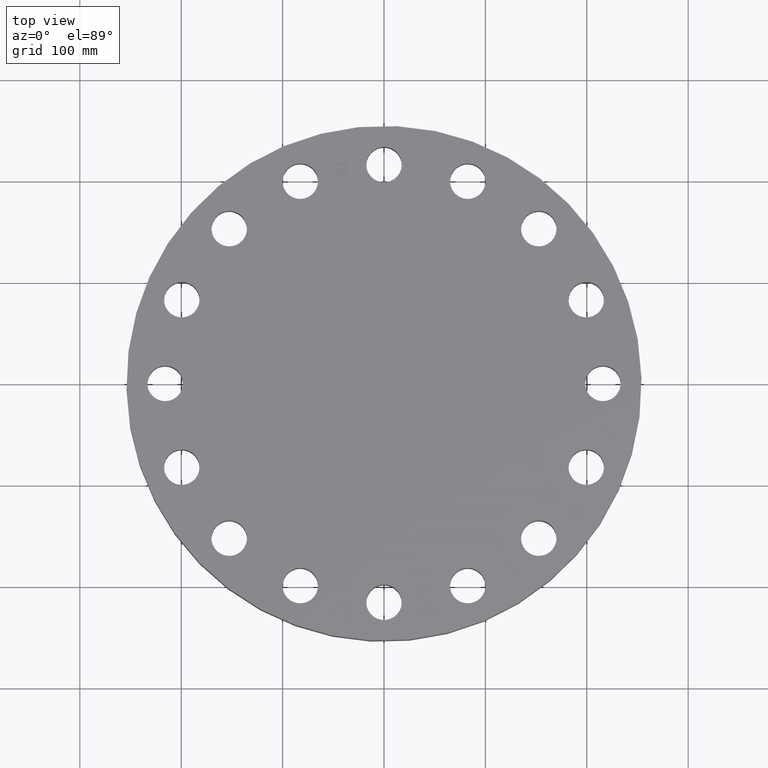
[diagram: clean part render]
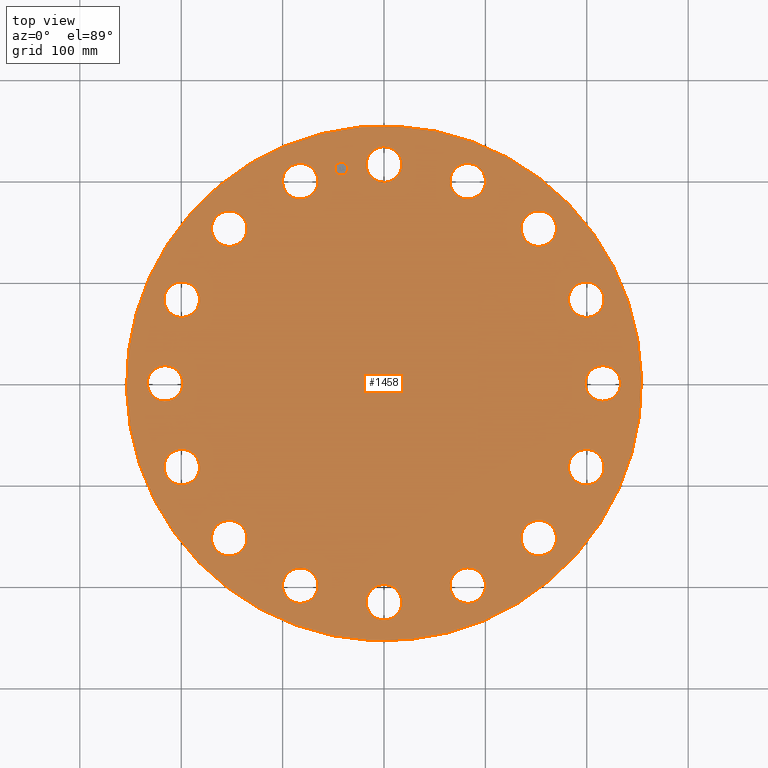
[diagram: same view with one face highlighted and labeled with its STEP entity id]
A machine part, top view. The second image highlights one B-rep face of the part: STEP entity #1458.
In plain terms, the highlighted planar face has unit normal (0, 0, -1).
Its self-contained STEP definition (entity closure, byte-faithful):
#126=AXIS2_PLACEMENT_3D('Circle Axis2P3D',#124,#125,$) ;
#143=AXIS2_PLACEMENT_3D('Circle Axis2P3D',#141,#142,$) ;
#183=AXIS2_PLACEMENT_3D('Circle Axis2P3D',#181,#182,$) ;
#200=AXIS2_PLACEMENT_3D('Circle Axis2P3D',#198,#199,$) ;
#240=AXIS2_PLACEMENT_3D('Circle Axis2P3D',#238,#239,$) ;
#257=AXIS2_PLACEMENT_3D('Circle Axis2P3D',#255,#256,$) ;
#297=AXIS2_PLACEMENT_3D('Circle Axis2P3D',#295,#296,$) ;
#314=AXIS2_PLACEMENT_3D('Circle Axis2P3D',#312,#313,$) ;
#354=AXIS2_PLACEMENT_3D('Circle Axis2P3D',#352,#353,$) ;
#371=AXIS2_PLACEMENT_3D('Circle Axis2P3D',#369,#370,$) ;
#411=AXIS2_PLACEMENT_3D('Circle Axis2P3D',#409,#410,$) ;
#428=AXIS2_PLACEMENT_3D('Circle Axis2P3D',#426,#427,$) ;
#468=AXIS2_PLACEMENT_3D('Circle Axis2P3D',#466,#467,$) ;
#485=AXIS2_PLACEMENT_3D('Circle Axis2P3D',#483,#484,$) ;
#525=AXIS2_PLACEMENT_3D('Circle Axis2P3D',#523,#524,$) ;
#542=AXIS2_PLACEMENT_3D('Circle Axis2P3D',#540,#541,$) ;
#582=AXIS2_PLACEMENT_3D('Circle Axis2P3D',#580,#581,$) ;
#599=AXIS2_PLACEMENT_3D('Circle Axis2P3D',#597,#598,$) ;
#639=AXIS2_PLACEMENT_3D('Circle Axis2P3D',#637,#638,$) ;
#656=AXIS2_PLACEMENT_3D('Circle Axis2P3D',#654,#655,$) ;
#696=AXIS2_PLACEMENT_3D('Circle Axis2P3D',#694,#695,$) ;
#713=AXIS2_PLACEMENT_3D('Circle Axis2P3D',#711,#712,$) ;
#753=AXIS2_PLACEMENT_3D('Circle Axis2P3D',#751,#752,$) ;
#770=AXIS2_PLACEMENT_3D('Circle Axis2P3D',#768,#769,$) ;
#810=AXIS2_PLACEMENT_3D('Circle Axis2P3D',#808,#809,$) ;
#827=AXIS2_PLACEMENT_3D('Circle Axis2P3D',#825,#826,$) ;
#867=AXIS2_PLACEMENT_3D('Circle Axis2P3D',#865,#866,$) ;
#884=AXIS2_PLACEMENT_3D('Circle Axis2P3D',#882,#883,$) ;
#924=AXIS2_PLACEMENT_3D('Circle Axis2P3D',#922,#923,$) ;
#941=AXIS2_PLACEMENT_3D('Circle Axis2P3D',#939,#940,$) ;
#1114=AXIS2_PLACEMENT_3D('Circle Axis2P3D',#1112,#1113,$) ;
#1133=AXIS2_PLACEMENT_3D('Circle Axis2P3D',#1131,#1132,$) ;
#1164=AXIS2_PLACEMENT_3D('Circle Axis2P3D',#1162,#1163,$) ;
#1176=AXIS2_PLACEMENT_3D('Circle Axis2P3D',#1174,#1175,$) ;
#1370=AXIS2_PLACEMENT_3D('Plane Axis2P3D',#1367,#1368,#1369) ;
#1442=AXIS2_PLACEMENT_3D('Circle Axis2P3D',#1440,#1441,$) ;
#1451=AXIS2_PLACEMENT_3D('Circle Axis2P3D',#1449,#1450,$) ;
#107=CARTESIAN_POINT('Vertex',(3.68565470099,7.31562627926,2.50000000001)) ;
#121=CARTESIAN_POINT('Vertex',(2.81996364924,8.3903257735,2.50000000001)) ;
#124=CARTESIAN_POINT('Axis2P3D Location',(3.25280917512,7.85297602638,2.50000000001)) ;
#141=CARTESIAN_POINT('Axis2P3D Location',(3.25280917512,7.85297602638,2.50000000001)) ;
#164=CARTESIAN_POINT('Vertex',(-0.605531967707,-8.1691963784,2.50000000001)) ;
#178=CARTESIAN_POINT('Vertex',(0.605531967707,-8.83080362167,2.50000000001)) ;
#181=CARTESIAN_POINT('Axis2P3D Location',(1.04094977928E-015,-8.50000000003,2.50000000001)) ;
#198=CARTESIAN_POINT('Axis2P3D Location',(1.04094977928E-015,-8.50000000003,2.50000000001)) ;
#221=CARTESIAN_POINT('Vertex',(-2.5667775185,7.77908038287,2.50000000001)) ;
#235=CARTESIAN_POINT('Vertex',(-3.93884083173,7.92687166988,2.50000000001)) ;
#238=CARTESIAN_POINT('Axis2P3D Location',(-3.25280917512,7.85297602638,2.50000000001)) ;
#255=CARTESIAN_POINT('Axis2P3D Location',(-3.25280917512,7.85297602638,2.50000000001)) ;
#278=CARTESIAN_POINT('Vertex',(2.5667775185,-7.77908038287,2.50000000001)) ;
#292=CARTESIAN_POINT('Vertex',(3.93884083173,-7.92687166988,2.50000000001)) ;
#295=CARTESIAN_POINT('Axis2P3D Location',(3.25280917512,-7.85297602638,2.50000000001)) ;
#312=CARTESIAN_POINT('Axis2P3D Location',(3.25280917512,-7.85297602638,2.50000000001)) ;
#335=CARTESIAN_POINT('Vertex',(-5.34831839542,6.2046699166,2.50000000001)) ;
#349=CARTESIAN_POINT('Vertex',(-6.6724968848,5.81614536362,2.50000000001)) ;
#352=CARTESIAN_POINT('Axis2P3D Location',(-6.01040764011,6.01040764011,2.50000000001)) ;
#369=CARTESIAN_POINT('Axis2P3D Location',(-6.01040764011,6.01040764011,2.50000000001)) ;
#392=CARTESIAN_POINT('Vertex',(5.34831839542,-6.2046699166,2.50000000001)) ;
#406=CARTESIAN_POINT('Vertex',(6.6724968848,-5.81614536362,2.50000000001)) ;
#409=CARTESIAN_POINT('Axis2P3D Location',(6.01040764011,-6.01040764011,2.50000000001)) ;
#426=CARTESIAN_POINT('Axis2P3D Location',(6.01040764011,-6.01040764011,2.50000000001)) ;
#449=CARTESIAN_POINT('Vertex',(-7.31562627926,3.68565470099,2.50000000001)) ;
#463=CARTESIAN_POINT('Vertex',(-8.3903257735,2.81996364924,2.50000000001)) ;
#466=CARTESIAN_POINT('Axis2P3D Location',(-7.85297602638,3.25280917512,2.50000000001)) ;
#483=CARTESIAN_POINT('Axis2P3D Location',(-7.85297602638,3.25280917512,2.50000000001)) ;
#506=CARTESIAN_POINT('Vertex',(7.31562627926,-3.68565470099,2.50000000001)) ;
#520=CARTESIAN_POINT('Vertex',(8.3903257735,-2.81996364924,2.50000000001)) ;
#523=CARTESIAN_POINT('Axis2P3D Location',(7.85297602638,-3.25280917512,2.50000000001)) ;
#540=CARTESIAN_POINT('Axis2P3D Location',(7.85297602638,-3.25280917512,2.50000000001)) ;
#563=CARTESIAN_POINT('Vertex',(-8.1691963784,0.605531967707,2.50000000001)) ;
#577=CARTESIAN_POINT('Vertex',(-8.83080362167,-0.605531967707,2.50000000001)) ;
#580=CARTESIAN_POINT('Axis2P3D Location',(-8.50000000003,-1.56142466892E-015,2.50000000001)) ;
#597=CARTESIAN_POINT('Axis2P3D Location',(-8.50000000003,-1.56142466892E-015,2.50000000001)) ;
#620=CARTESIAN_POINT('Vertex',(8.1691963784,-0.605531967707,2.50000000001)) ;
#634=CARTESIAN_POINT('Vertex',(8.83080362167,0.605531967707,2.50000000001)) ;
#637=CARTESIAN_POINT('Axis2P3D Location',(8.50000000003,5.2047488964E-016,2.50000000001)) ;
#654=CARTESIAN_POINT('Axis2P3D Location',(8.50000000003,5.2047488964E-016,2.50000000001)) ;
#677=CARTESIAN_POINT('Vertex',(-7.77908038287,-2.5667775185,2.50000000001)) ;
#691=CARTESIAN_POINT('Vertex',(-7.92687166988,-3.93884083173,2.50000000001)) ;
#694=CARTESIAN_POINT('Axis2P3D Location',(-7.85297602638,-3.25280917512,2.50000000001)) ;
#711=CARTESIAN_POINT('Axis2P3D Location',(-7.85297602638,-3.25280917512,2.50000000001)) ;
#734=CARTESIAN_POINT('Vertex',(7.77908038287,2.5667775185,2.50000000001)) ;
#748=CARTESIAN_POINT('Vertex',(7.92687166988,3.93884083173,2.50000000001)) ;
#751=CARTESIAN_POINT('Axis2P3D Location',(7.85297602638,3.25280917512,2.50000000001)) ;
#768=CARTESIAN_POINT('Axis2P3D Location',(7.85297602638,3.25280917512,2.50000000001)) ;
#791=CARTESIAN_POINT('Vertex',(-6.2046699166,-5.34831839542,2.50000000001)) ;
#805=CARTESIAN_POINT('Vertex',(-5.81614536362,-6.6724968848,2.50000000001)) ;
#808=CARTESIAN_POINT('Axis2P3D Location',(-6.01040764011,-6.01040764011,2.50000000001)) ;
#825=CARTESIAN_POINT('Axis2P3D Location',(-6.01040764011,-6.01040764011,2.50000000001)) ;
#848=CARTESIAN_POINT('Vertex',(6.2046699166,5.34831839542,2.50000000001)) ;
#862=CARTESIAN_POINT('Vertex',(5.81614536362,6.6724968848,2.50000000001)) ;
#865=CARTESIAN_POINT('Axis2P3D Location',(6.01040764011,6.01040764011,2.50000000001)) ;
#882=CARTESIAN_POINT('Axis2P3D Location',(6.01040764011,6.01040764011,2.50000000001)) ;
#905=CARTESIAN_POINT('Vertex',(-3.68565470099,-7.31562627926,2.50000000001)) ;
#919=CARTESIAN_POINT('Vertex',(-2.81996364924,-8.3903257735,2.50000000001)) ;
#922=CARTESIAN_POINT('Axis2P3D Location',(-3.25280917512,-7.85297602638,2.50000000001)) ;
#939=CARTESIAN_POINT('Axis2P3D Location',(-3.25280917512,-7.85297602638,2.50000000001)) ;
#1109=CARTESIAN_POINT('Vertex',(4.79425538606,8.77582561894,2.50000000001)) ;
#1112=CARTESIAN_POINT('Axis2P3D Location',(0.,0.,2.50000000001)) ;
#1116=CARTESIAN_POINT('Vertex',(-4.79425538606,-8.77582561894,2.50000000001)) ;
#1131=CARTESIAN_POINT('Axis2P3D Location',(0.,0.,2.50000000001)) ;
#1152=CARTESIAN_POINT('Vertex',(0.605531967707,8.1691963784,2.50000000001)) ;
#1159=CARTESIAN_POINT('Vertex',(-0.605531967707,8.83080362167,2.50000000001)) ;
#1162=CARTESIAN_POINT('Axis2P3D Location',(0.,8.50000000003,2.50000000001)) ;
#1174=CARTESIAN_POINT('Axis2P3D Location',(0.,8.50000000003,2.50000000001)) ;
#1367=CARTESIAN_POINT('Axis2P3D Location',(0.,10.,2.50000000001)) ;
#1440=CARTESIAN_POINT('Axis2P3D Location',(-1.65826773714,8.33667488346,2.50000000001)) ;
#1444=CARTESIAN_POINT('Vertex',(-1.90101209404,8.28839002876,2.50000000001)) ;
#1446=CARTESIAN_POINT('Vertex',(-1.41552338024,8.38495973816,2.50000000001)) ;
#1449=CARTESIAN_POINT('Axis2P3D Location',(-1.65826773714,8.33667488346,2.50000000001)) ;
#125=DIRECTION('Axis2P3D Direction',(0.,-0.,-0.0393700787402)) ;
#142=DIRECTION('Axis2P3D Direction',(0.,-0.,-0.0393700787402)) ;
#182=DIRECTION('Axis2P3D Direction',(-0.,0.,-0.0393700787402)) ;
#199=DIRECTION('Axis2P3D Direction',(-0.,0.,-0.0393700787402)) ;
#239=DIRECTION('Axis2P3D Direction',(0.,0.,-0.0393700787402)) ;
#256=DIRECTION('Axis2P3D Direction',(0.,0.,-0.0393700787402)) ;
#296=DIRECTION('Axis2P3D Direction',(-0.,0.,-0.0393700787402)) ;
#313=DIRECTION('Axis2P3D Direction',(-0.,0.,-0.0393700787402)) ;
#353=DIRECTION('Axis2P3D Direction',(0.,0.,-0.0393700787402)) ;
#370=DIRECTION('Axis2P3D Direction',(0.,0.,-0.0393700787402)) ;
#410=DIRECTION('Axis2P3D Direction',(-0.,0.,-0.0393700787402)) ;
#427=DIRECTION('Axis2P3D Direction',(-0.,0.,-0.0393700787402)) ;
#467=DIRECTION('Axis2P3D Direction',(0.,0.,-0.0393700787402)) ;
#484=DIRECTION('Axis2P3D Direction',(0.,0.,-0.0393700787402)) ;
#524=DIRECTION('Axis2P3D Direction',(-0.,0.,-0.0393700787402)) ;
#541=DIRECTION('Axis2P3D Direction',(-0.,0.,-0.0393700787402)) ;
#581=DIRECTION('Axis2P3D Direction',(0.,0.,-0.0393700787402)) ;
#598=DIRECTION('Axis2P3D Direction',(0.,0.,-0.0393700787402)) ;
#638=DIRECTION('Axis2P3D Direction',(0.,-0.,-0.0393700787402)) ;
#655=DIRECTION('Axis2P3D Direction',(0.,-0.,-0.0393700787402)) ;
#695=DIRECTION('Axis2P3D Direction',(0.,0.,-0.0393700787402)) ;
#712=DIRECTION('Axis2P3D Direction',(0.,0.,-0.0393700787402)) ;
#752=DIRECTION('Axis2P3D Direction',(0.,-0.,-0.0393700787402)) ;
#769=DIRECTION('Axis2P3D Direction',(0.,-0.,-0.0393700787402)) ;
#809=DIRECTION('Axis2P3D Direction',(0.,0.,-0.0393700787402)) ;
#826=DIRECTION('Axis2P3D Direction',(0.,0.,-0.0393700787402)) ;
#866=DIRECTION('Axis2P3D Direction',(0.,-0.,-0.0393700787402)) ;
#883=DIRECTION('Axis2P3D Direction',(0.,-0.,-0.0393700787402)) ;
#923=DIRECTION('Axis2P3D Direction',(0.,0.,-0.0393700787402)) ;
#940=DIRECTION('Axis2P3D Direction',(0.,0.,-0.0393700787402)) ;
#1113=DIRECTION('Axis2P3D Direction',(0.,0.,-0.0393700787402)) ;
#1132=DIRECTION('Axis2P3D Direction',(0.,0.,-0.0393700787402)) ;
#1163=DIRECTION('Axis2P3D Direction',(0.,-0.,-0.0393700787402)) ;
#1175=DIRECTION('Axis2P3D Direction',(0.,-0.,-0.0393700787402)) ;
#1368=DIRECTION('Axis2P3D Direction',(0.,0.,-0.0393700787402)) ;
#1369=DIRECTION('Axis2P3D XDirection',(0.0393700787402,0.,0.)) ;
#1441=DIRECTION('Axis2P3D Direction',(0.,0.,-0.0393700787402)) ;
#1450=DIRECTION('Axis2P3D Direction',(0.,0.,-0.0393700787402)) ;
#1373=ORIENTED_EDGE('',*,*,#1118,.F.) ;
#1374=ORIENTED_EDGE('',*,*,#1135,.F.) ;
#1377=ORIENTED_EDGE('',*,*,#1178,.T.) ;
#1378=ORIENTED_EDGE('',*,*,#1166,.T.) ;
#1381=ORIENTED_EDGE('',*,*,#128,.T.) ;
#1382=ORIENTED_EDGE('',*,*,#145,.T.) ;
#1385=ORIENTED_EDGE('',*,*,#869,.T.) ;
#1386=ORIENTED_EDGE('',*,*,#886,.T.) ;
#1389=ORIENTED_EDGE('',*,*,#755,.T.) ;
#1390=ORIENTED_EDGE('',*,*,#772,.T.) ;
#1393=ORIENTED_EDGE('',*,*,#641,.T.) ;
#1394=ORIENTED_EDGE('',*,*,#658,.T.) ;
#1397=ORIENTED_EDGE('',*,*,#527,.T.) ;
#1398=ORIENTED_EDGE('',*,*,#544,.T.) ;
#1401=ORIENTED_EDGE('',*,*,#413,.T.) ;
#1402=ORIENTED_EDGE('',*,*,#430,.T.) ;
#1405=ORIENTED_EDGE('',*,*,#299,.T.) ;
#1406=ORIENTED_EDGE('',*,*,#316,.T.) ;
#1409=ORIENTED_EDGE('',*,*,#185,.T.) ;
#1410=ORIENTED_EDGE('',*,*,#202,.T.) ;
#1413=ORIENTED_EDGE('',*,*,#926,.T.) ;
#1414=ORIENTED_EDGE('',*,*,#943,.T.) ;
#1417=ORIENTED_EDGE('',*,*,#812,.T.) ;
#1418=ORIENTED_EDGE('',*,*,#829,.T.) ;
#1421=ORIENTED_EDGE('',*,*,#698,.T.) ;
#1422=ORIENTED_EDGE('',*,*,#715,.T.) ;
#1425=ORIENTED_EDGE('',*,*,#584,.T.) ;
#1426=ORIENTED_EDGE('',*,*,#601,.T.) ;
#1429=ORIENTED_EDGE('',*,*,#470,.T.) ;
#1430=ORIENTED_EDGE('',*,*,#487,.T.) ;
#1433=ORIENTED_EDGE('',*,*,#356,.T.) ;
#1434=ORIENTED_EDGE('',*,*,#373,.T.) ;
#1437=ORIENTED_EDGE('',*,*,#242,.T.) ;
#1438=ORIENTED_EDGE('',*,*,#259,.T.) ;
#1455=ORIENTED_EDGE('',*,*,#1448,.T.) ;
#1456=ORIENTED_EDGE('',*,*,#1453,.T.) ;
#1379=FACE_BOUND('',#1376,.T.) ;
#1383=FACE_BOUND('',#1380,.T.) ;
#1387=FACE_BOUND('',#1384,.T.) ;
#1391=FACE_BOUND('',#1388,.T.) ;
#1395=FACE_BOUND('',#1392,.T.) ;
#1399=FACE_BOUND('',#1396,.T.) ;
#1403=FACE_BOUND('',#1400,.T.) ;
#1407=FACE_BOUND('',#1404,.T.) ;
#1411=FACE_BOUND('',#1408,.T.) ;
#1415=FACE_BOUND('',#1412,.T.) ;
#1419=FACE_BOUND('',#1416,.T.) ;
#1423=FACE_BOUND('',#1420,.T.) ;
#1427=FACE_BOUND('',#1424,.T.) ;
#1431=FACE_BOUND('',#1428,.T.) ;
#1435=FACE_BOUND('',#1432,.T.) ;
#1439=FACE_BOUND('',#1436,.T.) ;
#1457=FACE_BOUND('',#1454,.T.) ;
#1458=ADVANCED_FACE('PartBody',(#1375,#1379,#1383,#1387,#1391,#1395,#1399,#1403,#1407,#1411,#1415,#1419,#1423,#1427,#1431,#1435,#1439,#1457),#1371,.F.) ;
#127=CIRCLE('generated circle',#126,0.690000000003) ;
#144=CIRCLE('generated circle',#143,0.690000000003) ;
#184=CIRCLE('generated circle',#183,0.690000000003) ;
#201=CIRCLE('generated circle',#200,0.690000000003) ;
#241=CIRCLE('generated circle',#240,0.690000000003) ;
#258=CIRCLE('generated circle',#257,0.690000000003) ;
#298=CIRCLE('generated circle',#297,0.690000000003) ;
#315=CIRCLE('generated circle',#314,0.690000000003) ;
#355=CIRCLE('generated circle',#354,0.690000000003) ;
#372=CIRCLE('generated circle',#371,0.690000000003) ;
#412=CIRCLE('generated circle',#411,0.690000000003) ;
#429=CIRCLE('generated circle',#428,0.690000000003) ;
#469=CIRCLE('generated circle',#468,0.690000000003) ;
#486=CIRCLE('generated circle',#485,0.690000000003) ;
#526=CIRCLE('generated circle',#525,0.690000000003) ;
#543=CIRCLE('generated circle',#542,0.690000000003) ;
#583=CIRCLE('generated circle',#582,0.690000000003) ;
#600=CIRCLE('generated circle',#599,0.690000000003) ;
#640=CIRCLE('generated circle',#639,0.690000000003) ;
#657=CIRCLE('generated circle',#656,0.690000000003) ;
#697=CIRCLE('generated circle',#696,0.690000000003) ;
#714=CIRCLE('generated circle',#713,0.690000000003) ;
#754=CIRCLE('generated circle',#753,0.690000000003) ;
#771=CIRCLE('generated circle',#770,0.690000000003) ;
#811=CIRCLE('generated circle',#810,0.690000000003) ;
#828=CIRCLE('generated circle',#827,0.690000000003) ;
#868=CIRCLE('generated circle',#867,0.690000000003) ;
#885=CIRCLE('generated circle',#884,0.690000000003) ;
#925=CIRCLE('generated circle',#924,0.690000000003) ;
#942=CIRCLE('generated circle',#941,0.690000000003) ;
#1115=CIRCLE('generated circle',#1114,10.) ;
#1134=CIRCLE('generated circle',#1133,10.) ;
#1165=CIRCLE('generated circle',#1164,0.690000000003) ;
#1177=CIRCLE('generated circle',#1176,0.690000000003) ;
#1443=CIRCLE('generated circle',#1442,0.247500000001) ;
#1452=CIRCLE('generated circle',#1451,0.247500000001) ;
#128=EDGE_CURVE('',#108,#122,#127,.T.) ;
#145=EDGE_CURVE('',#122,#108,#144,.T.) ;
#185=EDGE_CURVE('',#165,#179,#184,.T.) ;
#202=EDGE_CURVE('',#179,#165,#201,.T.) ;
#242=EDGE_CURVE('',#222,#236,#241,.T.) ;
#259=EDGE_CURVE('',#236,#222,#258,.T.) ;
#299=EDGE_CURVE('',#279,#293,#298,.T.) ;
#316=EDGE_CURVE('',#293,#279,#315,.T.) ;
#356=EDGE_CURVE('',#336,#350,#355,.T.) ;
#373=EDGE_CURVE('',#350,#336,#372,.T.) ;
#413=EDGE_CURVE('',#393,#407,#412,.T.) ;
#430=EDGE_CURVE('',#407,#393,#429,.T.) ;
#470=EDGE_CURVE('',#450,#464,#469,.T.) ;
#487=EDGE_CURVE('',#464,#450,#486,.T.) ;
#527=EDGE_CURVE('',#507,#521,#526,.T.) ;
#544=EDGE_CURVE('',#521,#507,#543,.T.) ;
#584=EDGE_CURVE('',#564,#578,#583,.T.) ;
#601=EDGE_CURVE('',#578,#564,#600,.T.) ;
#641=EDGE_CURVE('',#621,#635,#640,.T.) ;
#658=EDGE_CURVE('',#635,#621,#657,.T.) ;
#698=EDGE_CURVE('',#678,#692,#697,.T.) ;
#715=EDGE_CURVE('',#692,#678,#714,.T.) ;
#755=EDGE_CURVE('',#735,#749,#754,.T.) ;
#772=EDGE_CURVE('',#749,#735,#771,.T.) ;
#812=EDGE_CURVE('',#792,#806,#811,.T.) ;
#829=EDGE_CURVE('',#806,#792,#828,.T.) ;
#869=EDGE_CURVE('',#849,#863,#868,.T.) ;
#886=EDGE_CURVE('',#863,#849,#885,.T.) ;
#926=EDGE_CURVE('',#906,#920,#925,.T.) ;
#943=EDGE_CURVE('',#920,#906,#942,.T.) ;
#1118=EDGE_CURVE('',#1110,#1117,#1115,.T.) ;
#1135=EDGE_CURVE('',#1117,#1110,#1134,.T.) ;
#1166=EDGE_CURVE('',#1153,#1160,#1165,.T.) ;
#1178=EDGE_CURVE('',#1160,#1153,#1177,.T.) ;
#1448=EDGE_CURVE('',#1445,#1447,#1443,.T.) ;
#1453=EDGE_CURVE('',#1447,#1445,#1452,.T.) ;
#1372=EDGE_LOOP('',(#1373,#1374)) ;
#1376=EDGE_LOOP('',(#1377,#1378)) ;
#1380=EDGE_LOOP('',(#1381,#1382)) ;
#1384=EDGE_LOOP('',(#1385,#1386)) ;
#1388=EDGE_LOOP('',(#1389,#1390)) ;
#1392=EDGE_LOOP('',(#1393,#1394)) ;
#1396=EDGE_LOOP('',(#1397,#1398)) ;
#1400=EDGE_LOOP('',(#1401,#1402)) ;
#1404=EDGE_LOOP('',(#1405,#1406)) ;
#1408=EDGE_LOOP('',(#1409,#1410)) ;
#1412=EDGE_LOOP('',(#1413,#1414)) ;
#1416=EDGE_LOOP('',(#1417,#1418)) ;
#1420=EDGE_LOOP('',(#1421,#1422)) ;
#1424=EDGE_LOOP('',(#1425,#1426)) ;
#1428=EDGE_LOOP('',(#1429,#1430)) ;
#1432=EDGE_LOOP('',(#1433,#1434)) ;
#1436=EDGE_LOOP('',(#1437,#1438)) ;
#1454=EDGE_LOOP('',(#1455,#1456)) ;
#1375=FACE_OUTER_BOUND('',#1372,.T.) ;
#1371=PLANE('',#1370) ;
#108=VERTEX_POINT('',#107) ;
#122=VERTEX_POINT('',#121) ;
#165=VERTEX_POINT('',#164) ;
#179=VERTEX_POINT('',#178) ;
#222=VERTEX_POINT('',#221) ;
#236=VERTEX_POINT('',#235) ;
#279=VERTEX_POINT('',#278) ;
#293=VERTEX_POINT('',#292) ;
#336=VERTEX_POINT('',#335) ;
#350=VERTEX_POINT('',#349) ;
#393=VERTEX_POINT('',#392) ;
#407=VERTEX_POINT('',#406) ;
#450=VERTEX_POINT('',#449) ;
#464=VERTEX_POINT('',#463) ;
#507=VERTEX_POINT('',#506) ;
#521=VERTEX_POINT('',#520) ;
#564=VERTEX_POINT('',#563) ;
#578=VERTEX_POINT('',#577) ;
#621=VERTEX_POINT('',#620) ;
#635=VERTEX_POINT('',#634) ;
#678=VERTEX_POINT('',#677) ;
#692=VERTEX_POINT('',#691) ;
#735=VERTEX_POINT('',#734) ;
#749=VERTEX_POINT('',#748) ;
#792=VERTEX_POINT('',#791) ;
#806=VERTEX_POINT('',#805) ;
#849=VERTEX_POINT('',#848) ;
#863=VERTEX_POINT('',#862) ;
#906=VERTEX_POINT('',#905) ;
#920=VERTEX_POINT('',#919) ;
#1110=VERTEX_POINT('',#1109) ;
#1117=VERTEX_POINT('',#1116) ;
#1153=VERTEX_POINT('',#1152) ;
#1160=VERTEX_POINT('',#1159) ;
#1445=VERTEX_POINT('',#1444) ;
#1447=VERTEX_POINT('',#1446) ;